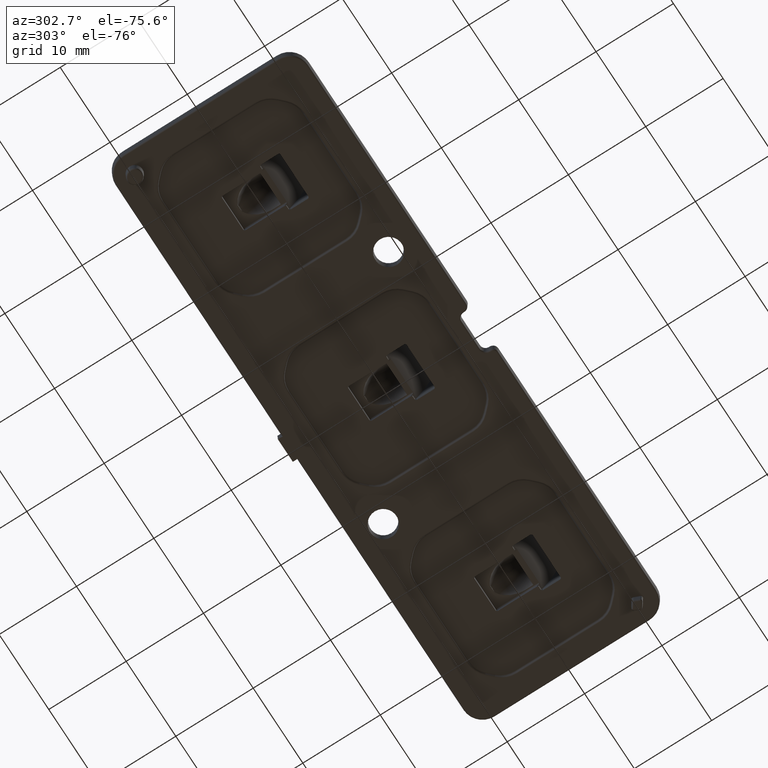
[diagram: clean part render]
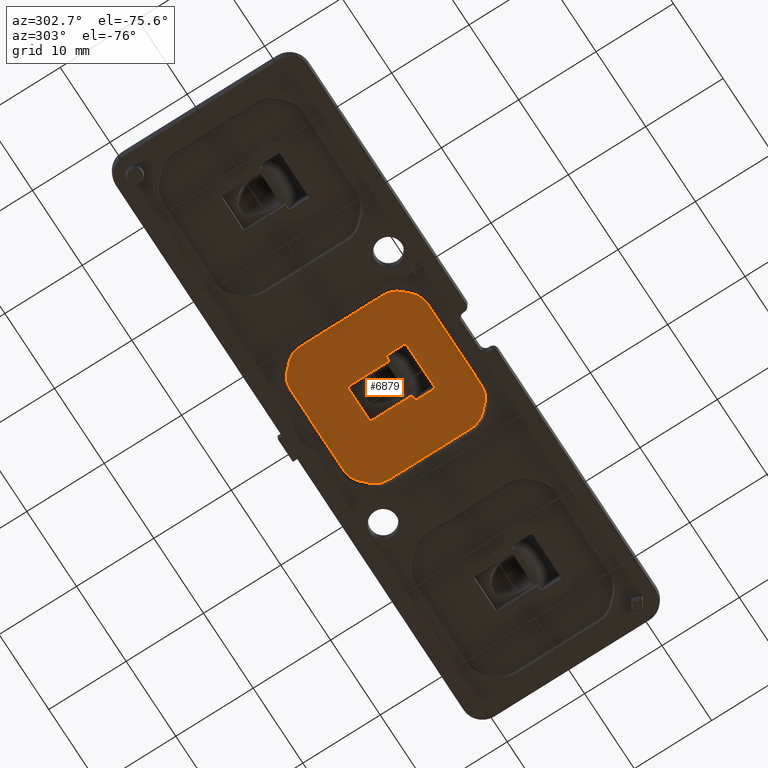
[diagram: same view with one face highlighted and labeled with its STEP entity id]
A machine part, auxiliary view. The second image highlights one B-rep face of the part: STEP entity #6879.
In plain terms, the highlighted planar face has unit normal (0, 0, -1).
Its self-contained STEP definition (entity closure, byte-faithful):
#91 = DIRECTION ( 'NONE',  ( 0.0000000000000000000, 0.0000000000000000000, -1.000000000000000000 ) ) ;
#202 = FACE_OUTER_BOUND ( 'NONE', #13168, .T. ) ;
#272 = CARTESIAN_POINT ( 'NONE',  ( -5.357359312880709500, -8.890225092205676900, 0.2999999999999999900 ) ) ;
#422 = DIRECTION ( 'NONE',  ( 0.0000000000000000000, -1.000000000000000000, 0.0000000000000000000 ) ) ;
#447 = ORIENTED_EDGE ( 'NONE', *, *, #16015, .T. ) ;
#716 = VERTEX_POINT ( 'NONE', #7828 ) ;
#850 = CARTESIAN_POINT ( 'NONE',  ( 2.300000000000003400, -1.699999999999994400, 0.2999999999999999300 ) ) ;
#909 = CARTESIAN_POINT ( 'NONE',  ( -2.989523769152475200, -4.273980055484407200, 0.2999999999999999300 ) ) ;
#973 = CARTESIAN_POINT ( 'NONE',  ( -2.299999999999999800, 3.300000000000002900, 0.2999999999999999300 ) ) ;
#1067 = PLANE ( 'NONE',  #16637 ) ;
#1370 = CIRCLE ( 'NONE', #15505, 0.2000000000000000900 ) ;
#1554 = CARTESIAN_POINT ( 'NONE',  ( -2.499999999999998700, -1.899999999999993200, 0.2999999999999999300 ) ) ;
#1601 = CARTESIAN_POINT ( 'NONE',  ( 5.357359312880708700, 8.890225092205675100, 0.2999999999999999900 ) ) ;
#1668 = CARTESIAN_POINT ( 'NONE',  ( -2.906630560374770400, -1.899999999999991500, 0.2999999999999999300 ) ) ;
#1675 = ORIENTED_EDGE ( 'NONE', *, *, #15311, .T. ) ;
#1733 = AXIS2_PLACEMENT_3D ( 'NONE', #5314, #15856, #6851 ) ;
#1819 = ORIENTED_EDGE ( 'NONE', *, *, #6315, .F. ) ;
#1833 = CARTESIAN_POINT ( 'NONE',  ( 7.330346396616207900, 8.072987083735489100, 0.2999999999999999900 ) ) ;
#1866 = VERTEX_POINT ( 'NONE', #3198 ) ;
#1902 = VERTEX_POINT ( 'NONE', #16791 ) ;
#1907 = CARTESIAN_POINT ( 'NONE',  ( 2.906630560374747300, -1.899999999999991700, 0.2999999999999999300 ) ) ;
#2002 = DIRECTION ( 'NONE',  ( 0.0000000000000000000, 0.0000000000000000000, -1.000000000000000000 ) ) ;
#2069 = CARTESIAN_POINT ( 'NONE',  ( 2.789645603748655700, -4.473858220888223200, 0.2999999999999999300 ) ) ;
#2555 = CARTESIAN_POINT ( 'NONE',  ( 0.0000000000000000000, 0.0000000000000000000, 0.2999999999999999900 ) ) ;
#2556 = CIRCLE ( 'NONE', #1733, 2.790225092205679900 ) ;
#2624 = AXIS2_PLACEMENT_3D ( 'NONE', #13966, #4949, #15491 ) ;
#2659 = CARTESIAN_POINT ( 'NONE',  ( -1.168339558649035900E-015, 8.890225092205675100, 0.2999999999999999900 ) ) ;
#2699 = VERTEX_POINT ( 'NONE', #16230 ) ;
#2739 = ORIENTED_EDGE ( 'NONE', *, *, #15773, .T. ) ;
#2827 = LINE ( 'NONE', #14240, #14872 ) ;
#2888 =( BOUNDED_CURVE ( )  B_SPLINE_CURVE ( 3, ( #6446, #15443, #13926, #7955 ),
 .UNSPECIFIED., .F., .F. ) 
 B_SPLINE_CURVE_WITH_KNOTS ( ( 4, 4 ),
 ( 2.356803477778026700, 3.926381829401684800 ),
 .UNSPECIFIED. ) 
 CURVE ( )  GEOMETRIC_REPRESENTATION_ITEM ( )  RATIONAL_B_SPLINE_CURVE ( ( 1.000000000000000000, 0.8050248461936635500, 0.8050248461936635500, 1.000000000000000000 ) ) 
 REPRESENTATION_ITEM ( '' )  );
#3001 = CARTESIAN_POINT ( 'NONE',  ( -5.357359312880708700, 6.099999999999993400, 0.2999999999999999900 ) ) ;
#3050 = DIRECTION ( 'NONE',  ( 0.0000000000000000000, 0.0000000000000000000, -1.000000000000000000 ) ) ;
#3097 = DIRECTION ( 'NONE',  ( -1.000000000000000000, 1.314184451497582200E-016, -0.0000000000000000000 ) ) ;
#3172 = ORIENTED_EDGE ( 'NONE', *, *, #10768, .F. ) ;
#3198 = CARTESIAN_POINT ( 'NONE',  ( -8.890225092205675100, 5.357359312880708700, 0.2999999999999999900 ) ) ;
#3218 = EDGE_CURVE ( 'NONE', #9145, #1866, #11337, .T. ) ;
#3236 = CARTESIAN_POINT ( 'NONE',  ( 2.299999999999999800, 3.300000000000002900, 0.2999999999999999300 ) ) ;
#3346 = VECTOR ( 'NONE', #11500, 1000.000000000000000 ) ;
#3358 = CARTESIAN_POINT ( 'NONE',  ( 5.357359312880708700, 6.099999999999995200, 0.2999999999999999900 ) ) ;
#3416 = CARTESIAN_POINT ( 'NONE',  ( 2.989523769152475200, -2.099999999999950400, 0.2999999999999999300 ) ) ;
#3620 = DIRECTION ( 'NONE',  ( -0.7071067811865474600, -0.7071067811865476800, -0.0000000000000000000 ) ) ;
#3701 = DIRECTION ( 'NONE',  ( -1.376764663473656700E-016, 1.000000000000000000, 0.0000000000000000000 ) ) ;
#3830 = VERTEX_POINT ( 'NONE', #3236 ) ;
#3895 = ORIENTED_EDGE ( 'NONE', *, *, #16001, .T. ) ;
#4127 = VERTEX_POINT ( 'NONE', #6882 ) ;
#4190 = AXIS2_PLACEMENT_3D ( 'NONE', #6173, #16712, #7692 ) ;
#4272 = ORIENTED_EDGE ( 'NONE', *, *, #4782, .T. ) ;
#4319 = LINE ( 'NONE', #6613, #15873 ) ;
#4320 = LINE ( 'NONE', #12128, #12342 ) ;
#4365 = ORIENTED_EDGE ( 'NONE', *, *, #10529, .F. ) ;
#4388 = DIRECTION ( 'NONE',  ( 0.0000000000000000000, 0.0000000000000000000, -1.000000000000000000 ) ) ;
#4424 = ORIENTED_EDGE ( 'NONE', *, *, #6082, .F. ) ;
#4519 = VECTOR ( 'NONE', #8865, 1000.000000000000000 ) ;
#4527 = DIRECTION ( 'NONE',  ( -1.000000000000000000, 0.0000000000000000000, 0.0000000000000000000 ) ) ;
#4574 =( BOUNDED_CURVE ( )  B_SPLINE_CURVE ( 3, ( #8419, #17427, #9903, #909 ),
 .UNSPECIFIED., .F., .F. ) 
 B_SPLINE_CURVE_WITH_KNOTS ( ( 4, 4 ),
 ( 2.356803477777885500, 3.926381829401560900 ),
 .UNSPECIFIED. ) 
 CURVE ( )  GEOMETRIC_REPRESENTATION_ITEM ( )  RATIONAL_B_SPLINE_CURVE ( ( 1.000000000000000000, 0.8050248461936593300, 0.8050248461936593300, 1.000000000000000000 ) ) 
 REPRESENTATION_ITEM ( '' )  );
#4768 = ORIENTED_EDGE ( 'NONE', *, *, #16303, .T. ) ;
#4782 = EDGE_CURVE ( 'NONE', #13032, #16574, #13458, .T. ) ;
#4793 = AXIS2_PLACEMENT_3D ( 'NONE', #12095, #3050, #13608 ) ;
#4807 = ORIENTED_EDGE ( 'NONE', *, *, #13509, .T. ) ;
#4884 = DIRECTION ( 'NONE',  ( -1.000000000000000000, 0.0000000000000000000, 0.0000000000000000000 ) ) ;
#4925 = CIRCLE ( 'NONE', #18276, 2.790225092205679900 ) ;
#4927 = EDGE_CURVE ( 'NONE', #13716, #14231, #4956, .T. ) ;
#4945 = CARTESIAN_POINT ( 'NONE',  ( -2.999999999999999100, -4.473858220888223200, 0.2999999999999999300 ) ) ;
#4949 = DIRECTION ( 'NONE',  ( -0.0000000000000000000, -0.0000000000000000000, -1.000000000000000000 ) ) ;
#4956 = LINE ( 'NONE', #17553, #8041 ) ;
#4999 = LINE ( 'NONE', #19389, #4519 ) ;
#5071 = DIRECTION ( 'NONE',  ( 1.000000000000000000, 0.0000000000000000000, 0.0000000000000000000 ) ) ;
#5163 = EDGE_CURVE ( 'NONE', #10723, #17577, #5665, .T. ) ;
#5314 = CARTESIAN_POINT ( 'NONE',  ( 5.357359312880708700, -6.099999999999995200, 0.2999999999999999900 ) ) ;
#5316 = ORIENTED_EDGE ( 'NONE', *, *, #15925, .F. ) ;
#5364 = EDGE_CURVE ( 'NONE', #12165, #10723, #15583, .T. ) ;
#5437 = VECTOR ( 'NONE', #7749, 1000.000000000000000 ) ;
#5539 = VECTOR ( 'NONE', #13105, 1000.000000000000000 ) ;
#5597 = DIRECTION ( 'NONE',  ( 0.0000000000000000000, 0.0000000000000000000, -1.000000000000000000 ) ) ;
#5665 = CIRCLE ( 'NONE', #8424, 2.790225092205679900 ) ;
#5668 = CARTESIAN_POINT ( 'NONE',  ( -2.989523769152475200, -2.099999999999992100, 0.2999999999999999300 ) ) ;
#5722 = EDGE_CURVE ( 'NONE', #7339, #3830, #2827, .T. ) ;
#5927 = AXIS2_PLACEMENT_3D ( 'NONE', #9110, #91, #10614 ) ;
#6001 = LINE ( 'NONE', #17562, #5539 ) ;
#6059 = CARTESIAN_POINT ( 'NONE',  ( -2.989523769152475200, -4.273980055484407200, 0.2999999999999999300 ) ) ;
#6082 = EDGE_CURVE ( 'NONE', #12127, #2699, #15091, .T. ) ;
#6144 = VECTOR ( 'NONE', #3620, 1000.000000000000000 ) ;
#6170 = CARTESIAN_POINT ( 'NONE',  ( -2.989523769152475200, -2.099999999999992100, 0.2999999999999999300 ) ) ;
#6173 = CARTESIAN_POINT ( 'NONE',  ( -2.499999999999998700, -1.699999999999994400, 0.2999999999999999300 ) ) ;
#6311 = CARTESIAN_POINT ( 'NONE',  ( 8.890225092205673400, 5.357359312880708700, 0.2999999999999999900 ) ) ;
#6315 = EDGE_CURVE ( 'NONE', #716, #19477, #15789, .T. ) ;
#6363 = DIRECTION ( 'NONE',  ( -0.0000000000000000000, 1.000000000000000000, -0.0000000000000000000 ) ) ;
#6423 = VERTEX_POINT ( 'NONE', #5668 ) ;
#6446 = CARTESIAN_POINT ( 'NONE',  ( 2.989523769152475200, -4.273980055484407200, 0.2999999999999999300 ) ) ;
#6613 = CARTESIAN_POINT ( 'NONE',  ( -2.999999999999999100, -1.899999999999993200, 0.2999999999999999300 ) ) ;
#6851 = DIRECTION ( 'NONE',  ( -1.000000000000000000, 0.0000000000000000000, 0.0000000000000000000 ) ) ;
#6856 = CARTESIAN_POINT ( 'NONE',  ( 8.072987083735489100, 7.330346396616206100, 0.2999999999999999900 ) ) ;
#6879 = ADVANCED_FACE ( 'NONE', ( #202, #11759 ), #1067, .T. ) ;
#6882 = CARTESIAN_POINT ( 'NONE',  ( -8.072987083735489100, 7.330346396616205200, 0.2999999999999999900 ) ) ;
#6911 = LINE ( 'NONE', #8491, #3346 ) ;
#6922 = EDGE_CURVE ( 'NONE', #15005, #14525, #7303, .T. ) ;
#6945 = CARTESIAN_POINT ( 'NONE',  ( 2.789401860292708900, -1.899999999999993200, 0.2999999999999999300 ) ) ;
#7025 = DIRECTION ( 'NONE',  ( 1.000000000000000000, 0.0000000000000000000, 0.0000000000000000000 ) ) ;
#7152 = EDGE_CURVE ( 'NONE', #15935, #17923, #4925, .T. ) ;
#7190 = VERTEX_POINT ( 'NONE', #8155 ) ;
#7293 = EDGE_CURVE ( 'NONE', #12391, #11540, #2556, .T. ) ;
#7303 = CIRCLE ( 'NONE', #17643, 2.790225092205679900 ) ;
#7339 = VERTEX_POINT ( 'NONE', #850 ) ;
#7349 = VECTOR ( 'NONE', #11775, 1000.000000000000000 ) ;
#7669 = DIRECTION ( 'NONE',  ( 0.0000000000000000000, 0.0000000000000000000, -1.000000000000000000 ) ) ;
#7692 = DIRECTION ( 'NONE',  ( 0.0000000000000000000, -1.000000000000000000, 0.0000000000000000000 ) ) ;
#7695 = EDGE_CURVE ( 'NONE', #19477, #13716, #1370, .T. ) ;
#7749 = DIRECTION ( 'NONE',  ( -0.7071067811865476800, 0.7071067811865474600, -0.0000000000000000000 ) ) ;
#7788 = DIRECTION ( 'NONE',  ( -0.0000000000000000000, -0.0000000000000000000, -1.000000000000000000 ) ) ;
#7828 = CARTESIAN_POINT ( 'NONE',  ( -2.299999999999996300, -1.699999999999994400, 0.2999999999999999300 ) ) ;
#7955 = CARTESIAN_POINT ( 'NONE',  ( 2.789645603748655700, -4.473858220888223200, 0.2999999999999999300 ) ) ;
#7997 = DIRECTION ( 'NONE',  ( -1.000000000000000000, 0.0000000000000000000, 0.0000000000000000000 ) ) ;
#8041 = VECTOR ( 'NONE', #7025, 1000.000000000000000 ) ;
#8070 = EDGE_CURVE ( 'NONE', #14231, #3830, #13170, .T. ) ;
#8111 = CARTESIAN_POINT ( 'NONE',  ( 2.100000000000001000, 3.500000000000008900, 0.2999999999999999300 ) ) ;
#8121 = CIRCLE ( 'NONE', #4793, 2.790225092205679900 ) ;
#8155 = CARTESIAN_POINT ( 'NONE',  ( 2.500000000000002200, -1.899999999999993200, 0.2999999999999999300 ) ) ;
#8178 = ORIENTED_EDGE ( 'NONE', *, *, #9651, .T. ) ;
#8419 = CARTESIAN_POINT ( 'NONE',  ( -2.789645603748655700, -4.473858220888223200, 0.2999999999999999300 ) ) ;
#8424 = AXIS2_PLACEMENT_3D ( 'NONE', #3358, #13907, #4884 ) ;
#8491 = CARTESIAN_POINT ( 'NONE',  ( -2.999999999999999100, -1.899999999999993200, 0.2999999999999999300 ) ) ;
#8513 = CARTESIAN_POINT ( 'NONE',  ( -2.299999999999999800, 5.542386954693196500E-015, 0.2999999999999999300 ) ) ;
#8596 = ORIENTED_EDGE ( 'NONE', *, *, #12476, .T. ) ;
#8623 = CARTESIAN_POINT ( 'NONE',  ( 8.072987083735489100, -7.330346396616207900, 0.2999999999999999900 ) ) ;
#8629 = ORIENTED_EDGE ( 'NONE', *, *, #12297, .F. ) ;
#8732 = CARTESIAN_POINT ( 'NONE',  ( 2.989523769152475200, -2.099999999999950400, 0.2999999999999999300 ) ) ;
#8865 = DIRECTION ( 'NONE',  ( 0.0000000000000000000, 1.000000000000000000, 0.0000000000000000000 ) ) ;
#9051 = VERTEX_POINT ( 'NONE', #6059 ) ;
#9110 = CARTESIAN_POINT ( 'NONE',  ( -6.099999999999993400, 5.357359312880708700, 0.2999999999999999900 ) ) ;
#9145 = VERTEX_POINT ( 'NONE', #13895 ) ;
#9273 = ORIENTED_EDGE ( 'NONE', *, *, #6922, .T. ) ;
#9398 = ORIENTED_EDGE ( 'NONE', *, *, #11530, .F. ) ;
#9439 = DIRECTION ( 'NONE',  ( -0.0000000000000000000, -0.0000000000000000000, -1.000000000000000000 ) ) ;
#9651 = EDGE_CURVE ( 'NONE', #13469, #18418, #13805, .T. ) ;
#9850 = CIRCLE ( 'NONE', #15322, 0.2000000000000000900 ) ;
#9864 = VERTEX_POINT ( 'NONE', #6945 ) ;
#9903 = CARTESIAN_POINT ( 'NONE',  ( -2.989523769152476100, -4.391095489464930800, 0.2999999999999999300 ) ) ;
#9995 = DIRECTION ( 'NONE',  ( -2.065146995210484700E-016, 1.000000000000000000, 0.0000000000000000000 ) ) ;
#10094 = DIRECTION ( 'NONE',  ( 1.000000000000000000, 1.314184451497582200E-016, -0.0000000000000000000 ) ) ;
#10240 = VERTEX_POINT ( 'NONE', #1554 ) ;
#10529 = EDGE_CURVE ( 'NONE', #2699, #9051, #4574, .T. ) ;
#10568 = EDGE_CURVE ( 'NONE', #14525, #15935, #6001, .T. ) ;
#10595 = LINE ( 'NONE', #15674, #14138 ) ;
#10614 = DIRECTION ( 'NONE',  ( -1.000000000000000000, 0.0000000000000000000, 0.0000000000000000000 ) ) ;
#10684 = ORIENTED_EDGE ( 'NONE', *, *, #5722, .T. ) ;
#10687 = CARTESIAN_POINT ( 'NONE',  ( -2.989523769152476500, -1.982842712474610900, 0.2999999999999999300 ) ) ;
#10723 = VERTEX_POINT ( 'NONE', #1601 ) ;
#10758 = ORIENTED_EDGE ( 'NONE', *, *, #5364, .T. ) ;
#10768 = EDGE_CURVE ( 'NONE', #6423, #15195, #16431, .T. ) ;
#10813 = CARTESIAN_POINT ( 'NONE',  ( -7.701666740175846300, -7.701666740175849000, 0.2999999999999999900 ) ) ;
#10849 = ORIENTED_EDGE ( 'NONE', *, *, #7152, .T. ) ;
#10876 = EDGE_CURVE ( 'NONE', #13469, #12127, #2888, .T. ) ;
#11016 = CARTESIAN_POINT ( 'NONE',  ( 6.099999999999993400, -5.357359312880709500, 0.2999999999999999900 ) ) ;
#11047 = CARTESIAN_POINT ( 'NONE',  ( 5.357359312880708700, -8.890225092205678700, 0.2999999999999999900 ) ) ;
#11129 = CARTESIAN_POINT ( 'NONE',  ( -2.099999999999997900, 3.500000000000008900, 0.2999999999999999300 ) ) ;
#11337 = LINE ( 'NONE', #14815, #7349 ) ;
#11438 = CARTESIAN_POINT ( 'NONE',  ( -8.072987083735489100, -7.330346396616206100, 0.2999999999999999900 ) ) ;
#11500 = DIRECTION ( 'NONE',  ( 1.000000000000000000, 0.0000000000000000000, 0.0000000000000000000 ) ) ;
#11508 = ORIENTED_EDGE ( 'NONE', *, *, #12861, .T. ) ;
#11530 = EDGE_CURVE ( 'NONE', #15195, #10240, #4319, .T. ) ;
#11536 = ORIENTED_EDGE ( 'NONE', *, *, #3218, .T. ) ;
#11540 = VERTEX_POINT ( 'NONE', #11047 ) ;
#11759 = FACE_BOUND ( 'NONE', #15462, .T. ) ;
#11772 = ORIENTED_EDGE ( 'NONE', *, *, #7293, .T. ) ;
#11775 = DIRECTION ( 'NONE',  ( -0.0000000000000000000, 1.000000000000000000, -0.0000000000000000000 ) ) ;
#11805 = CARTESIAN_POINT ( 'NONE',  ( 2.989523769152475200, -4.273980055484407200, 0.2999999999999999300 ) ) ;
#12095 = CARTESIAN_POINT ( 'NONE',  ( -6.099999999999993400, -5.357359312880709500, 0.2999999999999999900 ) ) ;
#12127 = VERTEX_POINT ( 'NONE', #2069 ) ;
#12128 = CARTESIAN_POINT ( 'NONE',  ( -1.168339558649036100E-015, -8.890225092205676900, 0.2999999999999999900 ) ) ;
#12165 = VERTEX_POINT ( 'NONE', #17241 ) ;
#12214 = CARTESIAN_POINT ( 'NONE',  ( -2.789401860292712400, -1.899999999999993200, 0.2999999999999999300 ) ) ;
#12266 = ORIENTED_EDGE ( 'NONE', *, *, #10876, .F. ) ;
#12297 = EDGE_CURVE ( 'NONE', #7190, #9864, #6911, .T. ) ;
#12342 = VECTOR ( 'NONE', #3097, 1000.000000000000000 ) ;
#12369 = ORIENTED_EDGE ( 'NONE', *, *, #12447, .F. ) ;
#12391 = VERTEX_POINT ( 'NONE', #13304 ) ;
#12447 = EDGE_CURVE ( 'NONE', #9051, #6423, #4999, .T. ) ;
#12462 = CARTESIAN_POINT ( 'NONE',  ( 2.989523769152448600, -1.982842712474588700, 0.2999999999999999300 ) ) ;
#12476 = EDGE_CURVE ( 'NONE', #1866, #4127, #16091, .T. ) ;
#12567 = DIRECTION ( 'NONE',  ( -1.000000000000000000, 0.0000000000000000000, 0.0000000000000000000 ) ) ;
#12861 = EDGE_CURVE ( 'NONE', #4127, #1902, #16317, .T. ) ;
#13032 = VERTEX_POINT ( 'NONE', #17578 ) ;
#13058 = ORIENTED_EDGE ( 'NONE', *, *, #13263, .T. ) ;
#13105 = DIRECTION ( 'NONE',  ( -0.0000000000000000000, -1.000000000000000000, -0.0000000000000000000 ) ) ;
#13168 = EDGE_LOOP ( 'NONE', ( #447, #11772, #4807, #2739, #4272, #13058, #11536, #8596, #11508, #4768, #10758, #17821, #3895, #9273, #14589, #10849 ) ) ;
#13170 = CIRCLE ( 'NONE', #2624, 0.2000000000000000900 ) ;
#13205 = ORIENTED_EDGE ( 'NONE', *, *, #4927, .F. ) ;
#13263 = EDGE_CURVE ( 'NONE', #16574, #9145, #8121, .T. ) ;
#13304 = CARTESIAN_POINT ( 'NONE',  ( 7.330346396616204400, -8.072987083735490900, 0.2999999999999999900 ) ) ;
#13435 = CARTESIAN_POINT ( 'NONE',  ( 6.099999999999993400, 5.357359312880708700, 0.2999999999999999900 ) ) ;
#13458 = LINE ( 'NONE', #10813, #5437 ) ;
#13469 = VERTEX_POINT ( 'NONE', #11805 ) ;
#13509 = EDGE_CURVE ( 'NONE', #11540, #17030, #4320, .T. ) ;
#13560 = DIRECTION ( 'NONE',  ( 0.0000000000000000000, 0.0000000000000000000, -1.000000000000000000 ) ) ;
#13608 = DIRECTION ( 'NONE',  ( -1.000000000000000000, 0.0000000000000000000, 0.0000000000000000000 ) ) ;
#13716 = VERTEX_POINT ( 'NONE', #11129 ) ;
#13805 = LINE ( 'NONE', #16890, #17337 ) ;
#13895 = CARTESIAN_POINT ( 'NONE',  ( -8.890225092205673400, -5.357359312880709500, 0.2999999999999999900 ) ) ;
#13907 = DIRECTION ( 'NONE',  ( 0.0000000000000000000, 0.0000000000000000000, -1.000000000000000000 ) ) ;
#13924 = CIRCLE ( 'NONE', #15938, 2.790225092205680800 ) ;
#13926 = CARTESIAN_POINT ( 'NONE',  ( 2.906761037729178400, -4.473858220888224000, 0.2999999999999999300 ) ) ;
#13966 = CARTESIAN_POINT ( 'NONE',  ( 2.100000000000001000, 3.300000000000002900, 0.2999999999999999300 ) ) ;
#14111 =( BOUNDED_CURVE ( )  B_SPLINE_CURVE ( 3, ( #18456, #1907, #12462, #3416 ),
 .UNSPECIFIED., .F., .F. ) 
 B_SPLINE_CURVE_WITH_KNOTS ( ( 4, 4 ),
 ( 4.712388980384689700, 6.283185307179378400 ),
 .UNSPECIFIED. ) 
 CURVE ( )  GEOMETRIC_REPRESENTATION_ITEM ( )  RATIONAL_B_SPLINE_CURVE ( ( 1.000000000000000000, 0.8047378541244139000, 0.8047378541244139000, 1.000000000000000000 ) ) 
 REPRESENTATION_ITEM ( '' )  );
#14133 = VECTOR ( 'NONE', #7997, 1000.000000000000000 ) ;
#14138 = VECTOR ( 'NONE', #18714, 1000.000000000000000 ) ;
#14160 = AXIS2_PLACEMENT_3D ( 'NONE', #3001, #13560, #4527 ) ;
#14227 = CARTESIAN_POINT ( 'NONE',  ( 7.701666740175849800, -7.701666740175848100, 0.2999999999999999900 ) ) ;
#14231 = VERTEX_POINT ( 'NONE', #8111 ) ;
#14240 = CARTESIAN_POINT ( 'NONE',  ( 2.300000000000003400, 5.542386954693196500E-015, 0.2999999999999999300 ) ) ;
#14525 = VERTEX_POINT ( 'NONE', #6311 ) ;
#14589 = ORIENTED_EDGE ( 'NONE', *, *, #10568, .T. ) ;
#14648 = CIRCLE ( 'NONE', #4190, 0.2000000000000000900 ) ;
#14797 = CARTESIAN_POINT ( 'NONE',  ( -2.789401860292712400, -1.899999999999993200, 0.2999999999999999300 ) ) ;
#14815 = CARTESIAN_POINT ( 'NONE',  ( -8.890225092205675100, 0.0000000000000000000, 0.2999999999999999900 ) ) ;
#14872 = VECTOR ( 'NONE', #3701, 1000.000000000000000 ) ;
#14934 = DIRECTION ( 'NONE',  ( -1.000000000000000000, 0.0000000000000000000, 0.0000000000000000000 ) ) ;
#15005 = VERTEX_POINT ( 'NONE', #6856 ) ;
#15074 = DIRECTION ( 'NONE',  ( 0.7071067811865474600, 0.7071067811865476800, -0.0000000000000000000 ) ) ;
#15091 = LINE ( 'NONE', #4945, #14133 ) ;
#15145 = CARTESIAN_POINT ( 'NONE',  ( -7.701666740175849000, 7.701666740175846300, 0.2999999999999999900 ) ) ;
#15195 = VERTEX_POINT ( 'NONE', #14797 ) ;
#15311 = EDGE_CURVE ( 'NONE', #716, #10240, #14648, .T. ) ;
#15319 = VECTOR ( 'NONE', #9995, 1000.000000000000000 ) ;
#15322 = AXIS2_PLACEMENT_3D ( 'NONE', #16804, #7788, #18310 ) ;
#15443 = CARTESIAN_POINT ( 'NONE',  ( 2.989523769152472100, -4.391095489464929000, 0.2999999999999999300 ) ) ;
#15462 = EDGE_LOOP ( 'NONE', ( #8629, #16421, #10684, #18589, #13205, #16909, #1819, #1675, #9398, #3172, #12369, #4365, #4424, #12266, #8178, #5316 ) ) ;
#15491 = DIRECTION ( 'NONE',  ( 0.0000000000000000000, -1.000000000000000000, 0.0000000000000000000 ) ) ;
#15505 = AXIS2_PLACEMENT_3D ( 'NONE', #18474, #9439, #422 ) ;
#15583 = LINE ( 'NONE', #2659, #18646 ) ;
#15674 = CARTESIAN_POINT ( 'NONE',  ( 7.701666740175849800, 7.701666740175842700, 0.2999999999999999900 ) ) ;
#15773 = EDGE_CURVE ( 'NONE', #17030, #13032, #13924, .T. ) ;
#15789 = LINE ( 'NONE', #8513, #15319 ) ;
#15856 = DIRECTION ( 'NONE',  ( 0.0000000000000000000, 0.0000000000000000000, -1.000000000000000000 ) ) ;
#15873 = VECTOR ( 'NONE', #5071, 1000.000000000000000 ) ;
#15925 = EDGE_CURVE ( 'NONE', #9864, #18418, #14111, .T. ) ;
#15935 = VERTEX_POINT ( 'NONE', #18516 ) ;
#15938 = AXIS2_PLACEMENT_3D ( 'NONE', #16685, #7669, #18187 ) ;
#16001 = EDGE_CURVE ( 'NONE', #17577, #15005, #10595, .T. ) ;
#16015 = EDGE_CURVE ( 'NONE', #17923, #12391, #18158, .T. ) ;
#16091 = CIRCLE ( 'NONE', #5927, 2.790225092205679900 ) ;
#16142 = DIRECTION ( 'NONE',  ( -1.000000000000000000, 0.0000000000000000000, -0.0000000000000000000 ) ) ;
#16230 = CARTESIAN_POINT ( 'NONE',  ( -2.789645603748655700, -4.473858220888223200, 0.2999999999999999300 ) ) ;
#16303 = EDGE_CURVE ( 'NONE', #1902, #12165, #18859, .T. ) ;
#16317 = LINE ( 'NONE', #15145, #17048 ) ;
#16421 = ORIENTED_EDGE ( 'NONE', *, *, #17517, .T. ) ;
#16431 =( BOUNDED_CURVE ( )  B_SPLINE_CURVE ( 3, ( #6170, #10687, #1668, #12214 ),
 .UNSPECIFIED., .F., .F. ) 
 B_SPLINE_CURVE_WITH_KNOTS ( ( 4, 4 ),
 ( 0.0000000000000000000, 1.570796326794896600 ),
 .UNSPECIFIED. ) 
 CURVE ( )  GEOMETRIC_REPRESENTATION_ITEM ( )  RATIONAL_B_SPLINE_CURVE ( ( 1.000000000000000000, 0.8047378541243649400, 0.8047378541243649400, 1.000000000000000000 ) ) 
 REPRESENTATION_ITEM ( '' )  );
#16574 = VERTEX_POINT ( 'NONE', #11438 ) ;
#16637 = AXIS2_PLACEMENT_3D ( 'NONE', #2555, #5597, #16142 ) ;
#16685 = CARTESIAN_POINT ( 'NONE',  ( -5.357359312880709500, -6.099999999999993400, 0.2999999999999999900 ) ) ;
#16712 = DIRECTION ( 'NONE',  ( -0.0000000000000000000, -0.0000000000000000000, -1.000000000000000000 ) ) ;
#16791 = CARTESIAN_POINT ( 'NONE',  ( -7.330346396616205200, 8.072987083735489100, 0.2999999999999999900 ) ) ;
#16804 = CARTESIAN_POINT ( 'NONE',  ( 2.500000000000002200, -1.699999999999994400, 0.2999999999999999300 ) ) ;
#16890 = CARTESIAN_POINT ( 'NONE',  ( 2.989523769152475200, 5.542386954693196500E-015, 0.2999999999999999300 ) ) ;
#16909 = ORIENTED_EDGE ( 'NONE', *, *, #7695, .F. ) ;
#17030 = VERTEX_POINT ( 'NONE', #272 ) ;
#17048 = VECTOR ( 'NONE', #15074, 1000.000000000000000 ) ;
#17241 = CARTESIAN_POINT ( 'NONE',  ( -5.357359312880708700, 8.890225092205673400, 0.2999999999999999900 ) ) ;
#17337 = VECTOR ( 'NONE', #6363, 1000.000000000000000 ) ;
#17427 = CARTESIAN_POINT ( 'NONE',  ( -2.906761037729179300, -4.473858220888225800, 0.2999999999999999300 ) ) ;
#17517 = EDGE_CURVE ( 'NONE', #7190, #7339, #9850, .T. ) ;
#17553 = CARTESIAN_POINT ( 'NONE',  ( 0.0000000000000000000, 3.500000000000008900, 0.2999999999999999300 ) ) ;
#17562 = CARTESIAN_POINT ( 'NONE',  ( 8.890225092205675100, 0.0000000000000000000, 0.2999999999999999900 ) ) ;
#17577 = VERTEX_POINT ( 'NONE', #1833 ) ;
#17578 = CARTESIAN_POINT ( 'NONE',  ( -7.330346396616206100, -8.072987083735489100, 0.2999999999999999900 ) ) ;
#17643 = AXIS2_PLACEMENT_3D ( 'NONE', #13435, #4388, #14934 ) ;
#17821 = ORIENTED_EDGE ( 'NONE', *, *, #5163, .T. ) ;
#17923 = VERTEX_POINT ( 'NONE', #8623 ) ;
#18158 = LINE ( 'NONE', #14227, #6144 ) ;
#18187 = DIRECTION ( 'NONE',  ( -1.000000000000000000, 0.0000000000000000000, 0.0000000000000000000 ) ) ;
#18276 = AXIS2_PLACEMENT_3D ( 'NONE', #11016, #2002, #12567 ) ;
#18310 = DIRECTION ( 'NONE',  ( 0.0000000000000000000, -1.000000000000000000, 0.0000000000000000000 ) ) ;
#18418 = VERTEX_POINT ( 'NONE', #8732 ) ;
#18456 = CARTESIAN_POINT ( 'NONE',  ( 2.789401860292708900, -1.899999999999993200, 0.2999999999999999300 ) ) ;
#18474 = CARTESIAN_POINT ( 'NONE',  ( -2.099999999999997900, 3.300000000000002900, 0.2999999999999999300 ) ) ;
#18516 = CARTESIAN_POINT ( 'NONE',  ( 8.890225092205675100, -5.357359312880710400, 0.2999999999999999900 ) ) ;
#18589 = ORIENTED_EDGE ( 'NONE', *, *, #8070, .F. ) ;
#18646 = VECTOR ( 'NONE', #10094, 1000.000000000000000 ) ;
#18714 = DIRECTION ( 'NONE',  ( 0.7071067811865472400, -0.7071067811865479100, -0.0000000000000000000 ) ) ;
#18859 = CIRCLE ( 'NONE', #14160, 2.790225092205679000 ) ;
#19389 = CARTESIAN_POINT ( 'NONE',  ( -2.989523769152475200, 5.542386954693196500E-015, 0.2999999999999999300 ) ) ;
#19477 = VERTEX_POINT ( 'NONE', #973 ) ;